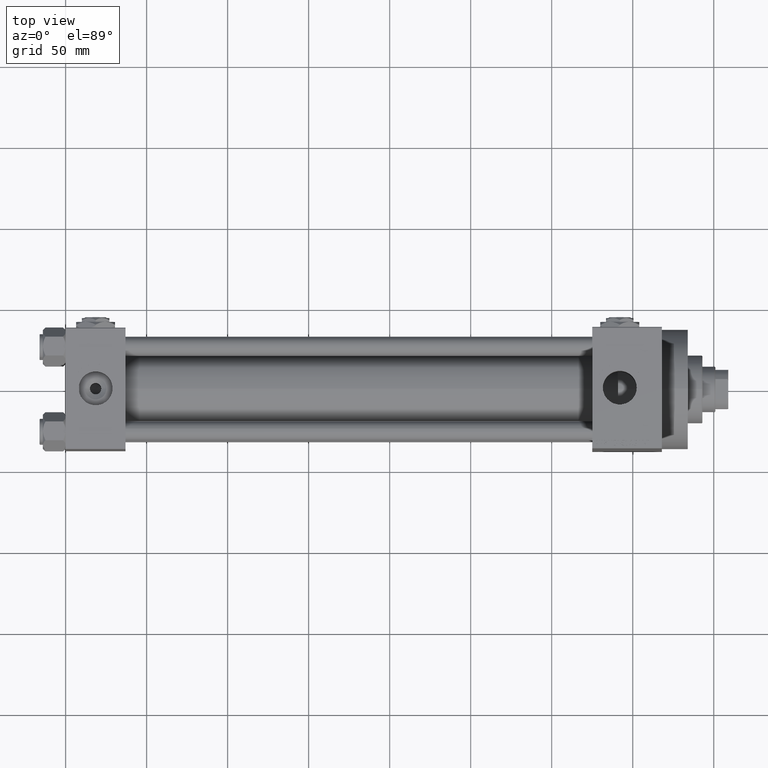
[diagram: clean part render]
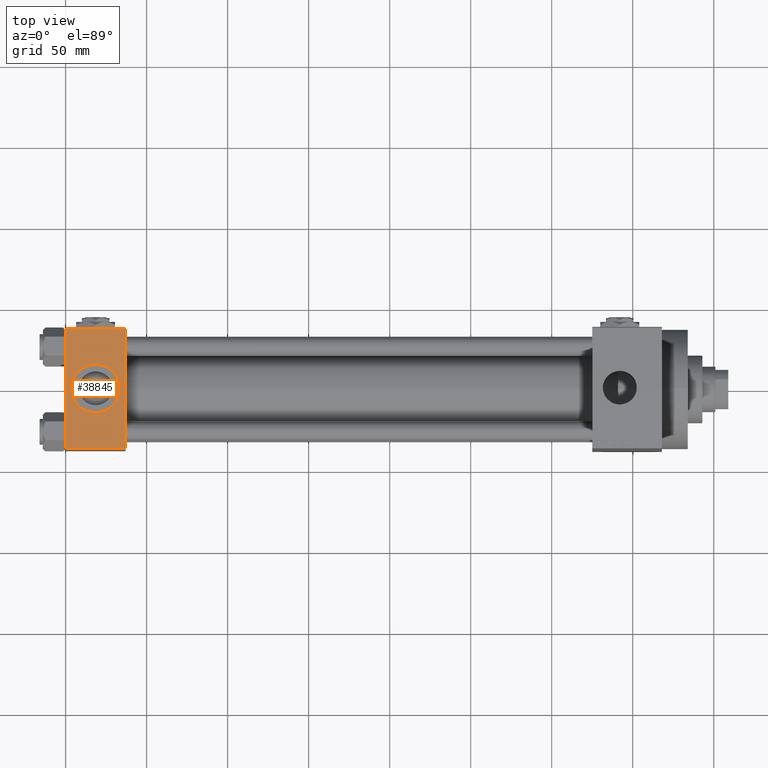
[diagram: same view with one face highlighted and labeled with its STEP entity id]
A machine part, top view. The second image highlights one B-rep face of the part: STEP entity #38845.
In plain terms, the highlighted planar face has unit normal (0, 0, -1).
Its self-contained STEP definition (entity closure, byte-faithful):
#3050 = CARTESIAN_POINT ( 'NONE',  ( 0.000000000000000000, -37.00000000000000711, 37.49999999999999289 ) ) ;
#3509 = EDGE_LOOP ( 'NONE', ( #17343, #29060 ) ) ;
#6670 = VERTEX_POINT ( 'NONE', #40537 ) ;
#7634 = CARTESIAN_POINT ( 'NONE',  ( 18.50000000000000000, -5.204170427930421283E-15, 37.50000000000000000 ) ) ;
#7769 = VECTOR ( 'NONE', #11648, 1000.000000000000000 ) ;
#9984 = LINE ( 'NONE', #44083, #47667 ) ;
#11648 = DIRECTION ( 'NONE',  ( 0.000000000000000000, -1.000000000000000000, -9.251858538542971581E-17 ) ) ;
#12259 = LINE ( 'NONE', #42885, #35757 ) ;
#12506 = DIRECTION ( 'NONE',  ( 0.000000000000000000, -1.000000000000000000, -9.251858538542971581E-17 ) ) ;
#13895 = CARTESIAN_POINT ( 'NONE',  ( 18.50000000000000000, -5.204170427930421283E-15, 37.50000000000000000 ) ) ;
#14482 = CARTESIAN_POINT ( 'NONE',  ( 0.000000000000000000, 36.99999999999999289, 37.50000000000000000 ) ) ;
#14622 = VERTEX_POINT ( 'NONE', #3050 ) ;
#15378 = LINE ( 'NONE', #23081, #7769 ) ;
#15458 = ORIENTED_EDGE ( 'NONE', *, *, #44805, .T. ) ;
#16032 = CARTESIAN_POINT ( 'NONE',  ( 37.00000000000000000, -37.00000000000000711, 37.49999999999999289 ) ) ;
#16300 = VECTOR ( 'NONE', #21751, 1000.000000000000000 ) ;
#17319 = AXIS2_PLACEMENT_3D ( 'NONE', #13895, #28598, #36554 ) ;
#17343 = ORIENTED_EDGE ( 'NONE', *, *, #32778, .F. ) ;
#18105 = CIRCLE ( 'NONE', #17319, 15.00000000000000355 ) ;
#18317 = EDGE_CURVE ( 'NONE', #6670, #22319, #15378, .T. ) ;
#19107 = CARTESIAN_POINT ( 'NONE',  ( 37.00000000000000000, 37.49999999999999289, 37.50000000000000000 ) ) ;
#21171 = EDGE_CURVE ( 'NONE', #38199, #34956, #18105, .T. ) ;
#21751 = DIRECTION ( 'NONE',  ( -1.000000000000000000, 0.000000000000000000, 0.000000000000000000 ) ) ;
#22319 = VERTEX_POINT ( 'NONE', #16032 ) ;
#22325 = DIRECTION ( 'NONE',  ( 1.000000000000000000, 0.000000000000000000, 0.000000000000000000 ) ) ;
#23081 = CARTESIAN_POINT ( 'NONE',  ( 37.00000000000000000, 37.49999999999999289, 37.50000000000000000 ) ) ;
#26318 = PLANE ( 'NONE',  #32371 ) ;
#26555 = DIRECTION ( 'NONE',  ( 0.000000000000000000, 9.251858538542971581E-17, -1.000000000000000000 ) ) ;
#26663 = EDGE_CURVE ( 'NONE', #6670, #31445, #30191, .T. ) ;
#28598 = DIRECTION ( 'NONE',  ( 0.000000000000000000, 0.000000000000000000, 1.000000000000000000 ) ) ;
#29060 = ORIENTED_EDGE ( 'NONE', *, *, #21171, .F. ) ;
#29278 = ORIENTED_EDGE ( 'NONE', *, *, #26663, .T. ) ;
#30191 = LINE ( 'NONE', #44904, #16300 ) ;
#31445 = VERTEX_POINT ( 'NONE', #14482 ) ;
#32125 = DIRECTION ( 'NONE',  ( 1.000000000000000000, 0.000000000000000000, 0.000000000000000000 ) ) ;
#32371 = AXIS2_PLACEMENT_3D ( 'NONE', #19107, #26555, #41507 ) ;
#32778 = EDGE_CURVE ( 'NONE', #34956, #38199, #45706, .T. ) ;
#34296 = ORIENTED_EDGE ( 'NONE', *, *, #18317, .F. ) ;
#34956 = VERTEX_POINT ( 'NONE', #39618 ) ;
#35757 = VECTOR ( 'NONE', #12506, 1000.000000000000000 ) ;
#36554 = DIRECTION ( 'NONE',  ( 1.000000000000000000, 0.000000000000000000, 0.000000000000000000 ) ) ;
#38006 = DIRECTION ( 'NONE',  ( 0.000000000000000000, 0.000000000000000000, 1.000000000000000000 ) ) ;
#38199 = VERTEX_POINT ( 'NONE', #43500 ) ;
#38299 = ORIENTED_EDGE ( 'NONE', *, *, #42456, .T. ) ;
#38845 = ADVANCED_FACE ( 'NONE', ( #45260, #41278 ), #26318, .F. ) ;
#39618 = CARTESIAN_POINT ( 'NONE',  ( 33.50000000000000000, -5.204170427930421283E-15, 37.50000000000000000 ) ) ;
#40537 = CARTESIAN_POINT ( 'NONE',  ( 37.00000000000000000, 36.99999999999999289, 37.50000000000000000 ) ) ;
#41278 = FACE_OUTER_BOUND ( 'NONE', #41747, .T. ) ;
#41507 = DIRECTION ( 'NONE',  ( 0.000000000000000000, 1.000000000000000000, 9.251858538542971581E-17 ) ) ;
#41747 = EDGE_LOOP ( 'NONE', ( #15458, #38299, #34296, #29278 ) ) ;
#42456 = EDGE_CURVE ( 'NONE', #14622, #22319, #9984, .T. ) ;
#42885 = CARTESIAN_POINT ( 'NONE',  ( 0.000000000000000000, 37.49999999999999289, 37.50000000000000000 ) ) ;
#43338 = AXIS2_PLACEMENT_3D ( 'NONE', #7634, #38006, #22325 ) ;
#43500 = CARTESIAN_POINT ( 'NONE',  ( 3.499999999999997780, -3.367200229209391300E-15, 37.50000000000000000 ) ) ;
#44083 = CARTESIAN_POINT ( 'NONE',  ( 37.00000000000000000, -37.00000000000000711, 37.49999999999999289 ) ) ;
#44805 = EDGE_CURVE ( 'NONE', #31445, #14622, #12259, .T. ) ;
#44904 = CARTESIAN_POINT ( 'NONE',  ( 0.000000000000000000, 36.99999999999999289, 37.50000000000000000 ) ) ;
#45260 = FACE_BOUND ( 'NONE', #3509, .T. ) ;
#45706 = CIRCLE ( 'NONE', #43338, 15.00000000000000355 ) ;
#47667 = VECTOR ( 'NONE', #32125, 1000.000000000000000 ) ;